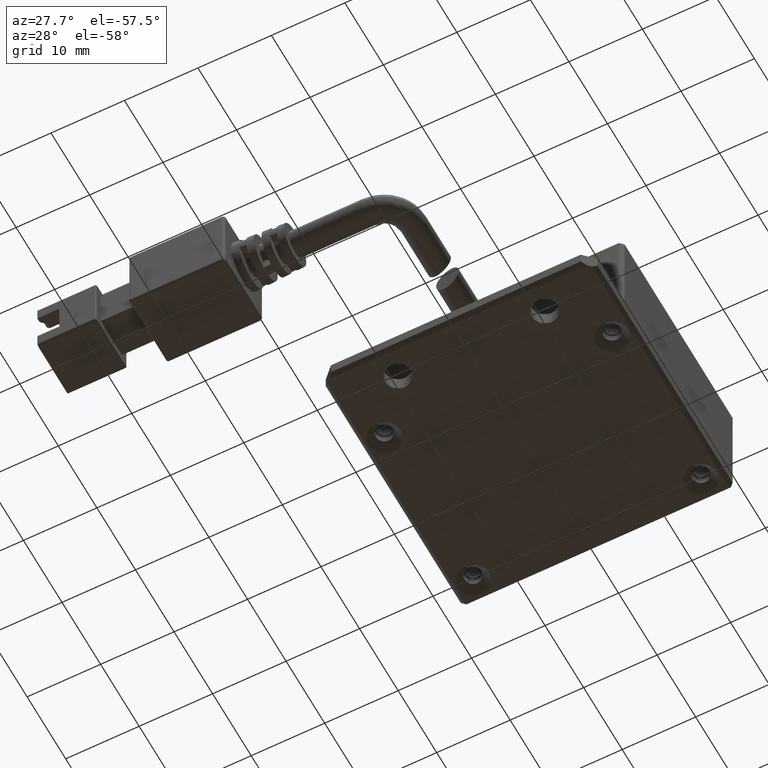
[diagram: clean part render]
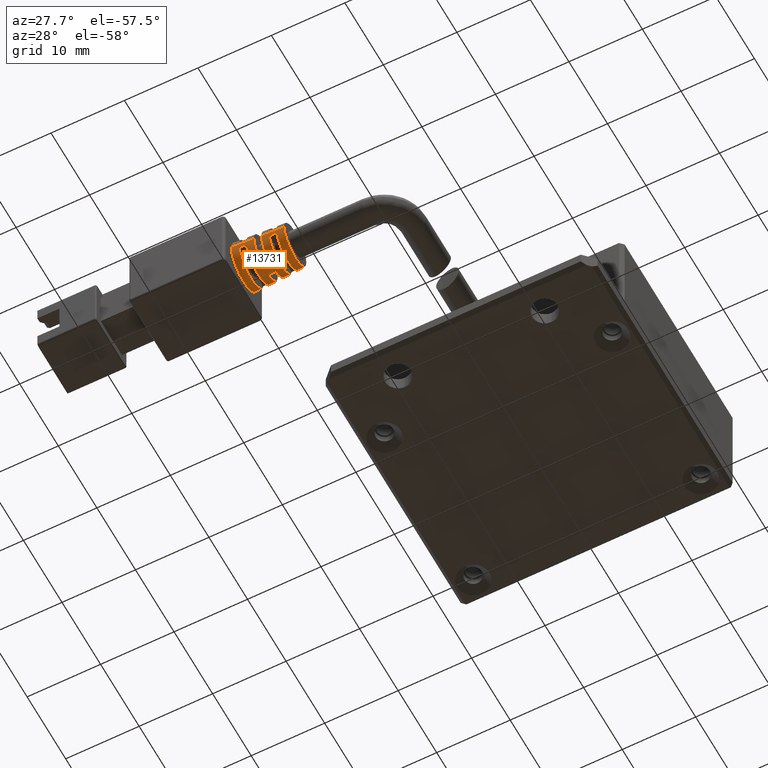
[diagram: same view with one face highlighted and labeled with its STEP entity id]
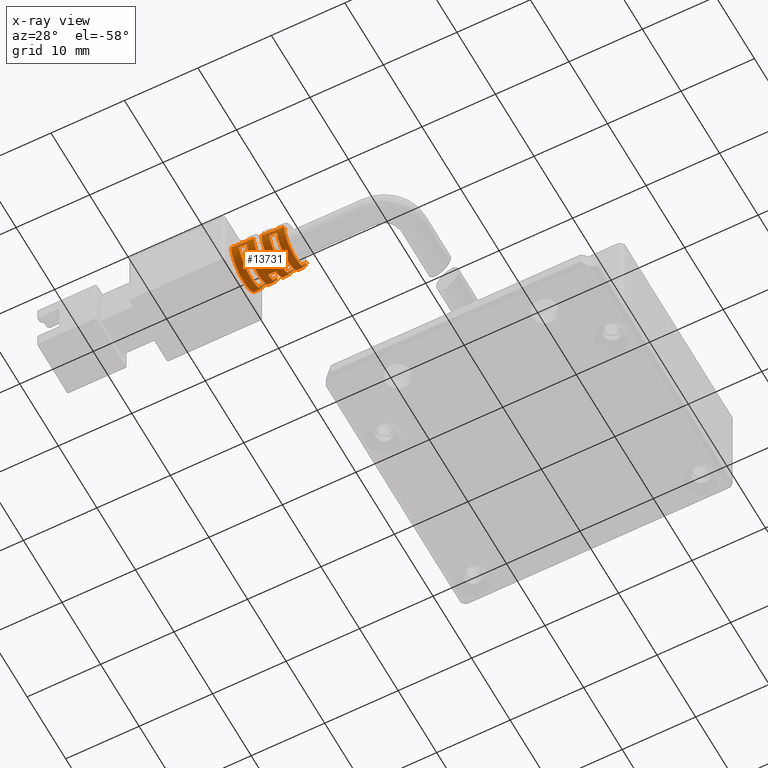
[diagram: x-ray of the same camera — body ghosted, the highlighted face saturated]
A machine part, auxiliary view. The second image highlights one B-rep face of the part: STEP entity #13731.
The next image is the same camera in x-ray: the body ghosted, the highlighted face saturated — about 0% of this face is hidden behind the body in this view.
In plain terms, the highlighted conical surface has half-angle 3 deg.
Its self-contained STEP definition (entity closure, byte-faithful):
#248 = CIRCLE ( 'NONE', #7226, 3.040368882866441200 ) ;
#283 = CARTESIAN_POINT ( 'NONE',  ( -16.52940053454563000, -38.65364642993505800, 1.019422380812207200 ) ) ;
#287 = ORIENTED_EDGE ( 'NONE', *, *, #24187, .T. ) ;
#337 = EDGE_CURVE ( 'NONE', #19108, #22727, #17848, .T. ) ;
#441 = VECTOR ( 'NONE', #6494, 1000.000000000000200 ) ;
#473 = CIRCLE ( 'NONE', #5363, 3.092776662151075500 ) ;
#543 = CARTESIAN_POINT ( 'NONE',  ( -20.52940053432780200, -41.30364642992215400, 3.999999999983630400 ) ) ;
#639 = DIRECTION ( 'NONE',  ( -0.9986295347545816000, -0.05233595624279531500, -4.539420596603597400E-018 ) ) ;
#735 = CARTESIAN_POINT ( 'NONE',  ( -16.52940053453988200, -37.45364642993506300, 1.019422380812514700 ) ) ;
#738 = AXIS2_PLACEMENT_3D ( 'NONE', #22837, #14697, #25004 ) ;
#919 = CARTESIAN_POINT ( 'NONE',  ( -20.52940053432780200, -41.30364642992215400, 3.999999999983630400 ) ) ;
#1215 = CARTESIAN_POINT ( 'NONE',  ( -14.52940053456927500, -35.18006446315163800, 3.399999999983630300 ) ) ;
#1283 = DIRECTION ( 'NONE',  ( 1.000000000000000000, 6.162975822039154700E-033, 5.345529420184391300E-049 ) ) ;
#1295 = CARTESIAN_POINT ( 'NONE',  ( -15.19606684410781500, -35.14437942505667700, 3.399999999983630300 ) ) ;
#1544 = CARTESIAN_POINT ( 'NONE',  ( -20.52940053455517600, -34.80364642993604500, 3.999999999983631300 ) ) ;
#1663 = EDGE_CURVE ( 'NONE', #6624, #18287, #16767, .T. ) ;
#1838 = CARTESIAN_POINT ( 'NONE',  ( -18.52940053454754800, -41.14107014083564500, 3.399999999983629900 ) ) ;
#1880 = ORIENTED_EDGE ( 'NONE', *, *, #12183, .T. ) ;
#2065 = AXIS2_PLACEMENT_3D ( 'NONE', #10322, #24666, #12388 ) ;
#2370 = CARTESIAN_POINT ( 'NONE',  ( -17.19606688121181300, -38.65364642993505800, 0.9837892230550183700 ) ) ;
#2476 = CARTESIAN_POINT ( 'NONE',  ( -15.52940053455745200, -40.98074594251315300, 3.399999999983629900 ) ) ;
#2588 = EDGE_LOOP ( 'NONE', ( #20755, #22584, #4275, #15511 ) ) ;
#2614 = EDGE_LOOP ( 'NONE', ( #14659, #21837, #13356, #5309 ) ) ;
#2635 = CARTESIAN_POINT ( 'NONE',  ( -17.19606688121181600, -37.45364642993506300, 0.9837892230550183700 ) ) ;
#2892 = VERTEX_POINT ( 'NONE', #16711 ) ;
#3193 = CARTESIAN_POINT ( 'NONE',  ( -17.52940053456645600, -38.65364642993505800, 0.9659816279322299700 ) ) ;
#3378 = CARTESIAN_POINT ( 'NONE',  ( -13.52940053455017600, -38.05364642993505700, 3.999999999983630400 ) ) ;
#3396 = EDGE_CURVE ( 'NONE', #17583, #2892, #17528, .T. ) ;
#3510 = CARTESIAN_POINT ( 'NONE',  ( -17.52940053456927300, -41.14642309208613100, 3.999999999983630400 ) ) ;
#3574 = B_SPLINE_CURVE_WITH_KNOTS ( 'NONE', 3,
 ( #25294, #2635, #23266, #735 ),
 .UNSPECIFIED., .F., .F.,
 ( 4, 4 ),
 ( 1.400181254570129900E-015, 0.001001426938980516500 ),
 .UNSPECIFIED. ) ;
#3842 = VERTEX_POINT ( 'NONE', #3193 ) ;
#3925 = CARTESIAN_POINT ( 'NONE',  ( -16.52940053453607700, -35.01327754706861800, 3.999999999983631300 ) ) ;
#4201 = EDGE_LOOP ( 'NONE', ( #25433, #17782, #7811, #23944, #14811, #11136, #13371, #22561, #8967, #1880, #6211, #287 ) ) ;
#4275 = ORIENTED_EDGE ( 'NONE', *, *, #7753, .T. ) ;
#4533 = CARTESIAN_POINT ( 'NONE',  ( -16.52940053453607700, -41.09401531280149600, 3.999999999983630400 ) ) ;
#4605 = CARTESIAN_POINT ( 'NONE',  ( -20.52940053455517600, -38.05364642993505700, 3.999999999983630400 ) ) ;
#4958 = CARTESIAN_POINT ( 'NONE',  ( -18.86273357489992400, -41.15886620670015400, 3.399999999983629900 ) ) ;
#5309 = ORIENTED_EDGE ( 'NONE', *, *, #7350, .T. ) ;
#5363 = AXIS2_PLACEMENT_3D ( 'NONE', #12214, #26504, #14251 ) ;
#5414 = DIRECTION ( 'NONE',  ( 0.0000000000000000000, -1.000000000000000000, 0.0000000000000000000 ) ) ;
#5876 = EDGE_CURVE ( 'NONE', #2892, #11567, #21444, .T. ) ;
#5915 = CARTESIAN_POINT ( 'NONE',  ( -20.52940053432780200, -34.80364642994796000, 3.999999999983631300 ) ) ;
#5926 = LINE ( 'NONE', #5915, #13333 ) ;
#6211 = ORIENTED_EDGE ( 'NONE', *, *, #11326, .T. ) ;
#6400 = VERTEX_POINT ( 'NONE', #8231 ) ;
#6479 = CARTESIAN_POINT ( 'NONE',  ( -19.52940053456699900, -41.19444187217389000, 3.399999999983629500 ) ) ;
#6494 = DIRECTION ( 'NONE',  ( -0.9986295347545816000, 0.05233595624279531500, 1.094872672590912000E-017 ) ) ;
#6624 = VERTEX_POINT ( 'NONE', #21384 ) ;
#6695 = DIRECTION ( 'NONE',  ( 0.0000000000000000000, -1.000000000000000000, 0.0000000000000000000 ) ) ;
#6718 = CARTESIAN_POINT ( 'NONE',  ( -17.52940053456927300, -38.05364642993505700, 3.999999999983630400 ) ) ;
#7031 = EDGE_CURVE ( 'NONE', #6400, #11567, #16834, .T. ) ;
#7226 = AXIS2_PLACEMENT_3D ( 'NONE', #7343, #21661, #9396 ) ;
#7265 = VERTEX_POINT ( 'NONE', #15536 ) ;
#7343 = CARTESIAN_POINT ( 'NONE',  ( -16.52940053453607700, -38.05364642993505700, 3.999999999983630400 ) ) ;
#7350 = EDGE_CURVE ( 'NONE', #17237, #25060, #11647, .T. ) ;
#7753 = EDGE_CURVE ( 'NONE', #7265, #19973, #19453, .T. ) ;
#7811 = ORIENTED_EDGE ( 'NONE', *, *, #1663, .T. ) ;
#8167 = AXIS2_PLACEMENT_3D ( 'NONE', #13563, #1283, #17704 ) ;
#8231 = CARTESIAN_POINT ( 'NONE',  ( -17.52940053456927300, -34.96086976778398300, 3.999999999983631300 ) ) ;
#8567 = VERTEX_POINT ( 'NONE', #1838 ) ;
#8591 = B_SPLINE_CURVE_WITH_KNOTS ( 'NONE', 3,
 ( #2476, #19000, #21032, #23097 ),
 .UNSPECIFIED., .F., .F.,
 ( 4, 4 ),
 ( 4.726604209672303400E-016, 0.001001431039896520700 ),
 .UNSPECIFIED. ) ;
#8636 = CONICAL_SURFACE ( 'NONE', #738, 3.249999999987096500, 0.05235987755968116900 ) ;
#8770 = DIRECTION ( 'NONE',  ( 0.0000000000000000000, -1.000000000000000000, 0.0000000000000000000 ) ) ;
#8967 = ORIENTED_EDGE ( 'NONE', *, *, #7031, .F. ) ;
#9297 = EDGE_CURVE ( 'NONE', #8567, #7265, #17785, .T. ) ;
#9371 = CARTESIAN_POINT ( 'NONE',  ( -18.52940053455040100, -34.96622271903431300, 3.399999999983630300 ) ) ;
#9396 = DIRECTION ( 'NONE',  ( 0.0000000000000000000, -1.000000000000000000, -1.996972209567748600E-015 ) ) ;
#9563 = DIRECTION ( 'NONE',  ( -1.000000000000000000, -6.162975822039154700E-033, -5.345529420184391300E-049 ) ) ;
#9632 = CARTESIAN_POINT ( 'NONE',  ( -15.52940053455882300, -35.12654691735688300, 3.399999999983630300 ) ) ;
#10070 = CARTESIAN_POINT ( 'NONE',  ( -14.52940053457772900, -40.92722839671893100, 3.399999999983629500 ) ) ;
#10236 = AXIS2_PLACEMENT_3D ( 'NONE', #6718, #21052, #8770 ) ;
#10314 = DIRECTION ( 'NONE',  ( -1.000000000000000000, -6.162975822039154700E-033, -5.345529420184391300E-049 ) ) ;
#10322 = CARTESIAN_POINT ( 'NONE',  ( -18.52940053454562600, -38.05364642993505700, 3.999999999983630400 ) ) ;
#10365 = CARTESIAN_POINT ( 'NONE',  ( -13.52940053455017600, -35.17050088491654900, 3.999999999983631300 ) ) ;
#10630 = EDGE_CURVE ( 'NONE', #25060, #19108, #8591, .T. ) ;
#11136 = ORIENTED_EDGE ( 'NONE', *, *, #11661, .T. ) ;
#11176 = CARTESIAN_POINT ( 'NONE',  ( -16.52940053453607700, -38.05364642993505700, 3.999999999983630400 ) ) ;
#11245 = CIRCLE ( 'NONE', #19653, 3.040368882866441200 ) ;
#11326 = EDGE_CURVE ( 'NONE', #11783, #21296, #3574, .T. ) ;
#11435 = CARTESIAN_POINT ( 'NONE',  ( -18.86273357489992700, -34.94842665316996000, 3.399999999983630300 ) ) ;
#11457 = AXIS2_PLACEMENT_3D ( 'NONE', #21824, #9563, #23890 ) ;
#11518 = CARTESIAN_POINT ( 'NONE',  ( -14.86273350399157200, -35.16221848270946300, 3.399999999983630300 ) ) ;
#11567 = VERTEX_POINT ( 'NONE', #1544 ) ;
#11630 = EDGE_CURVE ( 'NONE', #20119, #19720, #5926, .T. ) ;
#11647 = CIRCLE ( 'NONE', #11457, 2.987961103584790800 ) ;
#11661 = EDGE_CURVE ( 'NONE', #3842, #17583, #473, .T. ) ;
#11783 = VERTEX_POINT ( 'NONE', #23148 ) ;
#12183 = EDGE_CURVE ( 'NONE', #6400, #11783, #17428, .T. ) ;
#12214 = CARTESIAN_POINT ( 'NONE',  ( -17.52940053456927300, -38.05364642993505700, 3.999999999983630400 ) ) ;
#12388 = DIRECTION ( 'NONE',  ( 0.0000000000000000000, -1.000000000000000000, 8.273235679558057500E-016 ) ) ;
#12600 = CARTESIAN_POINT ( 'NONE',  ( -16.86273354202422700, -38.65364642993505800, 1.001602699982234700 ) ) ;
#12848 = CIRCLE ( 'NONE', #22481, 3.197592220717360200 ) ;
#12902 = EDGE_CURVE ( 'NONE', #20119, #6624, #16083, .T. ) ;
#12941 = CARTESIAN_POINT ( 'NONE',  ( -15.52940053455745200, -40.98074594251315300, 3.399999999983629900 ) ) ;
#13011 = B_SPLINE_CURVE_WITH_KNOTS ( 'NONE', 3,
 ( #1215, #11518, #1295, #15635 ),
 .UNSPECIFIED., .F., .F.,
 ( 4, 4 ),
 ( 2.814395180234999500E-015, 0.001001431039903073800 ),
 .UNSPECIFIED. ) ;
#13153 = CARTESIAN_POINT ( 'NONE',  ( -19.19606691330625000, -41.17665669055632100, 3.399999999983629500 ) ) ;
#13223 = DIRECTION ( 'NONE',  ( 0.0000000000000000000, -1.000000000000000000, 0.0000000000000000000 ) ) ;
#13333 = VECTOR ( 'NONE', #18233, 1000.000000000000200 ) ;
#13356 = ORIENTED_EDGE ( 'NONE', *, *, #24709, .T. ) ;
#13371 = ORIENTED_EDGE ( 'NONE', *, *, #3396, .T. ) ;
#13402 = EDGE_CURVE ( 'NONE', #18287, #25627, #11245, .T. ) ;
#13495 = CARTESIAN_POINT ( 'NONE',  ( -19.52940053457408000, -34.91285098769584700, 3.399999999983630300 ) ) ;
#13563 = CARTESIAN_POINT ( 'NONE',  ( -14.52940053458337200, -38.05364642993505700, 3.999999999983630400 ) ) ;
#13660 = CARTESIAN_POINT ( 'NONE',  ( -16.52940053454563000, -38.65364642993505800, 1.019422380812207200 ) ) ;
#13731 = ADVANCED_FACE ( 'NONE', ( #16660, #17311, #22087 ), #8636, .T. ) ;
#14251 = DIRECTION ( 'NONE',  ( 0.0000000000000000000, -1.000000000000000000, 0.0000000000000000000 ) ) ;
#14386 = CARTESIAN_POINT ( 'NONE',  ( -14.52940053456927500, -35.18006446315163800, 3.399999999983630300 ) ) ;
#14659 = ORIENTED_EDGE ( 'NONE', *, *, #10630, .T. ) ;
#14697 = DIRECTION ( 'NONE',  ( -1.000000000000000000, -6.162975822039154700E-033, -5.345529420184391300E-049 ) ) ;
#14811 = ORIENTED_EDGE ( 'NONE', *, *, #25383, .T. ) ;
#15200 = CARTESIAN_POINT ( 'NONE',  ( -19.52940053456699900, -41.19444187217389000, 3.399999999983629500 ) ) ;
#15511 = ORIENTED_EDGE ( 'NONE', *, *, #23883, .T. ) ;
#15536 = CARTESIAN_POINT ( 'NONE',  ( -18.52940053455040100, -34.96622271903431300, 3.399999999983630300 ) ) ;
#15635 = CARTESIAN_POINT ( 'NONE',  ( -15.52940053455882300, -35.12654691735688300, 3.399999999983630300 ) ) ;
#16083 = CIRCLE ( 'NONE', #18688, 2.883145545018506200 ) ;
#16188 = AXIS2_PLACEMENT_3D ( 'NONE', #4605, #18995, #6695 ) ;
#16660 = FACE_OUTER_BOUND ( 'NONE', #4201, .T. ) ;
#16711 = CARTESIAN_POINT ( 'NONE',  ( -20.52940053455517600, -41.30364642993406900, 3.999999999983630400 ) ) ;
#16717 = CARTESIAN_POINT ( 'NONE',  ( -17.52940053456645600, -38.65364642993505800, 0.9659816279322299700 ) ) ;
#16767 = LINE ( 'NONE', #543, #22195 ) ;
#16834 = LINE ( 'NONE', #20846, #441 ) ;
#17237 = VERTEX_POINT ( 'NONE', #9632 ) ;
#17311 = FACE_BOUND ( 'NONE', #2588, .T. ) ;
#17340 = DIRECTION ( 'NONE',  ( -0.9986295347545816000, -0.05233595624279531500, -4.539420596603597400E-018 ) ) ;
#17428 = CIRCLE ( 'NONE', #10236, 3.092776662151075500 ) ;
#17526 = VERTEX_POINT ( 'NONE', #6479 ) ;
#17528 = LINE ( 'NONE', #919, #22969 ) ;
#17583 = VERTEX_POINT ( 'NONE', #3510 ) ;
#17704 = DIRECTION ( 'NONE',  ( 0.0000000000000000000, -1.000000000000000000, 8.864036610825011600E-016 ) ) ;
#17735 = DIRECTION ( 'NONE',  ( -1.000000000000000000, -6.162975822039154700E-033, -5.345529420184391300E-049 ) ) ;
#17782 = ORIENTED_EDGE ( 'NONE', *, *, #12902, .T. ) ;
#17785 = CIRCLE ( 'NONE', #2065, 3.145184441432725900 ) ;
#17848 = CIRCLE ( 'NONE', #8167, 2.935553324303140400 ) ;
#18233 = DIRECTION ( 'NONE',  ( -0.9986295347545816000, 0.05233595624279531500, 1.094872672590912000E-017 ) ) ;
#18287 = VERTEX_POINT ( 'NONE', #4533 ) ;
#18688 = AXIS2_PLACEMENT_3D ( 'NONE', #3378, #17735, #5414 ) ;
#18995 = DIRECTION ( 'NONE',  ( 1.000000000000000000, 6.162975822039154700E-033, 5.345529420184391300E-049 ) ) ;
#19000 = CARTESIAN_POINT ( 'NONE',  ( -15.19606684410781500, -40.96291343481343700, 3.399999999983629900 ) ) ;
#19108 = VERTEX_POINT ( 'NONE', #10070 ) ;
#19350 = CARTESIAN_POINT ( 'NONE',  ( -18.52940053454754800, -41.14107014083564500, 3.399999999983629900 ) ) ;
#19453 = B_SPLINE_CURVE_WITH_KNOTS ( 'NONE', 3,
 ( #9371, #11435, #25717, #13495 ),
 .UNSPECIFIED., .F., .F.,
 ( 4, 4 ),
 ( 9.380091124788226300E-016, 0.001001423258045919700 ),
 .UNSPECIFIED. ) ;
#19653 = AXIS2_PLACEMENT_3D ( 'NONE', #11176, #25455, #13223 ) ;
#19720 = VERTEX_POINT ( 'NONE', #3925 ) ;
#19973 = VERTEX_POINT ( 'NONE', #23206 ) ;
#20119 = VERTEX_POINT ( 'NONE', #10365 ) ;
#20288 = EDGE_CURVE ( 'NONE', #17526, #8567, #22472, .T. ) ;
#20755 = ORIENTED_EDGE ( 'NONE', *, *, #20288, .T. ) ;
#20846 = CARTESIAN_POINT ( 'NONE',  ( -20.52940053432780200, -34.80364642994796000, 3.999999999983631300 ) ) ;
#21032 = CARTESIAN_POINT ( 'NONE',  ( -14.86273350399157200, -40.94507437716065100, 3.399999999983629500 ) ) ;
#21052 = DIRECTION ( 'NONE',  ( -1.000000000000000000, -6.162975822039154700E-033, -5.345529420184391300E-049 ) ) ;
#21229 = B_SPLINE_CURVE_WITH_KNOTS ( 'NONE', 3,
 ( #283, #12600, #2370, #16717 ),
 .UNSPECIFIED., .F., .F.,
 ( 4, 4 ),
 ( 1.969985609253608900E-015, 0.001001426938979561100 ),
 .UNSPECIFIED. ) ;
#21296 = VERTEX_POINT ( 'NONE', #21327 ) ;
#21327 = CARTESIAN_POINT ( 'NONE',  ( -16.52940053453988200, -37.45364642993506300, 1.019422380812514700 ) ) ;
#21384 = CARTESIAN_POINT ( 'NONE',  ( -13.52940053455017600, -40.93679197495356400, 3.999999999983630400 ) ) ;
#21444 = CIRCLE ( 'NONE', #16188, 3.249999999999010600 ) ;
#21661 = DIRECTION ( 'NONE',  ( 1.000000000000000000, 6.162975822039154700E-033, 5.345529420184391300E-049 ) ) ;
#21824 = CARTESIAN_POINT ( 'NONE',  ( -15.52940053455972500, -38.05364642993505700, 3.999999999983630400 ) ) ;
#21837 = ORIENTED_EDGE ( 'NONE', *, *, #337, .T. ) ;
#22087 = FACE_BOUND ( 'NONE', #2614, .T. ) ;
#22195 = VECTOR ( 'NONE', #639, 1000.000000000000200 ) ;
#22472 = B_SPLINE_CURVE_WITH_KNOTS ( 'NONE', 3,
 ( #15200, #13153, #4958, #19350 ),
 .UNSPECIFIED., .F., .F.,
 ( 4, 4 ),
 ( 2.331347021169815300E-015, 0.001001423258043081200 ),
 .UNSPECIFIED. ) ;
#22481 = AXIS2_PLACEMENT_3D ( 'NONE', #22578, #10314, #24658 ) ;
#22561 = ORIENTED_EDGE ( 'NONE', *, *, #5876, .T. ) ;
#22578 = CARTESIAN_POINT ( 'NONE',  ( -19.52940053457882300, -38.05364642993505700, 3.999999999983630400 ) ) ;
#22584 = ORIENTED_EDGE ( 'NONE', *, *, #9297, .T. ) ;
#22727 = VERTEX_POINT ( 'NONE', #14386 ) ;
#22837 = CARTESIAN_POINT ( 'NONE',  ( -20.52940053432780200, -38.05364642993505700, 3.999999999983630400 ) ) ;
#22969 = VECTOR ( 'NONE', #17340, 1000.000000000000200 ) ;
#23097 = CARTESIAN_POINT ( 'NONE',  ( -14.52940053457772900, -40.92722839671893100, 3.399999999983629500 ) ) ;
#23148 = CARTESIAN_POINT ( 'NONE',  ( -17.52940053456222800, -37.45364642993506300, 0.9659816279324554600 ) ) ;
#23206 = CARTESIAN_POINT ( 'NONE',  ( -19.52940053457408000, -34.91285098769584700, 3.399999999983630300 ) ) ;
#23266 = CARTESIAN_POINT ( 'NONE',  ( -16.86273354202424100, -37.45364642993506300, 1.001602699982234700 ) ) ;
#23883 = EDGE_CURVE ( 'NONE', #19973, #17526, #12848, .T. ) ;
#23890 = DIRECTION ( 'NONE',  ( 0.0000000000000000000, -1.000000000000000000, 0.0000000000000000000 ) ) ;
#23944 = ORIENTED_EDGE ( 'NONE', *, *, #13402, .T. ) ;
#24187 = EDGE_CURVE ( 'NONE', #21296, #19720, #248, .T. ) ;
#24658 = DIRECTION ( 'NONE',  ( 0.0000000000000000000, -1.000000000000000000, 0.0000000000000000000 ) ) ;
#24666 = DIRECTION ( 'NONE',  ( 1.000000000000000000, 6.162975822039154700E-033, 5.345529420184391300E-049 ) ) ;
#24709 = EDGE_CURVE ( 'NONE', #22727, #17237, #13011, .T. ) ;
#25004 = DIRECTION ( 'NONE',  ( 0.0000000000000000000, -1.000000000000000000, 0.0000000000000000000 ) ) ;
#25060 = VERTEX_POINT ( 'NONE', #12941 ) ;
#25294 = CARTESIAN_POINT ( 'NONE',  ( -17.52940053456222800, -37.45364642993506300, 0.9659816279324554600 ) ) ;
#25383 = EDGE_CURVE ( 'NONE', #25627, #3842, #21229, .T. ) ;
#25433 = ORIENTED_EDGE ( 'NONE', *, *, #11630, .F. ) ;
#25455 = DIRECTION ( 'NONE',  ( 1.000000000000000000, 6.162975822039154700E-033, 5.345529420184391300E-049 ) ) ;
#25627 = VERTEX_POINT ( 'NONE', #13660 ) ;
#25717 = CARTESIAN_POINT ( 'NONE',  ( -19.19606691330625700, -34.93063616931379300, 3.399999999983630300 ) ) ;
#26504 = DIRECTION ( 'NONE',  ( -1.000000000000000000, -6.162975822039154700E-033, -5.345529420184391300E-049 ) ) ;